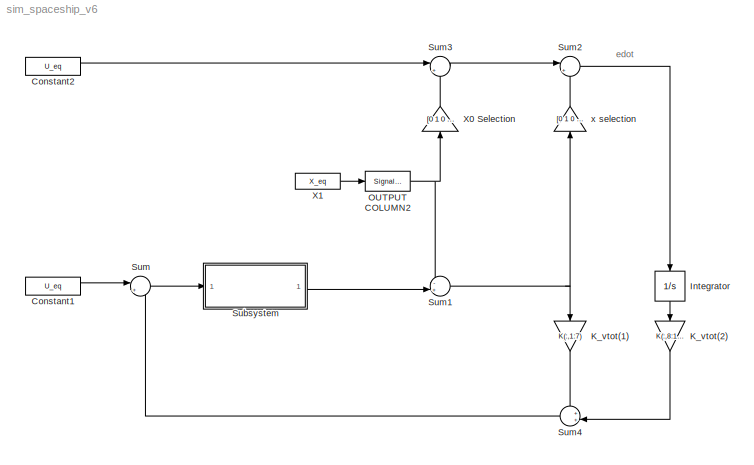
MODEL sim_spaceship_v6
KIND model
BLOCK [Constant] Constant1
  SID = 4048
  Value = U_eq
BLOCK [Constant] Constant2
  SID = 4065
  Value = U_eq
BLOCK [Integrator] Integrator
  Ports = [1, 1]
  SID = 4049
BLOCK [Gain] K_vtot(1)
  Gain = K(:,1:7)
  Multiplication = Matrix(K*u)
  OutDataTypeStr = Inherit: Inherit via internal rule
  ParamDataTypeStr = Inherit: Inherit via internal rule
  SID = 4050
  SaturateOnIntegerOverflow = off
BLOCK [Gain] K_vtot(2)
  Gain = K(:,8:10)
  Multiplication = Matrix(K*u)
  OutDataTypeStr = Inherit: Inherit via internal rule
  ParamDataTypeStr = Inherit: Inherit via internal rule
  SID = 4051
  SaturateOnIntegerOverflow = off
BLOCK [SignalSpecification] OUTPUT COLUMN2
  Dimensions = [7 1]
  SID = 4052
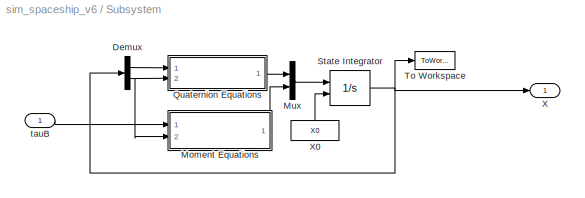
BLOCK [SubSystem] Subsystem
  FunctionWithSeparateData = off
  MaskHideContents = off
  MinAlgLoopOccurrences = off
  Opaque = off
  Ports = [1, 1]
  PropExecContextOutsideSubsystem = off
  RTWSystemCode = Auto
  RequestExecContextInheritance = off
  SID = 4062
BLOCK [Demux] Subsystem/Demux
  DisplayOption = bar
  Outputs = 2
  Ports = [1, 2]
  SID = 3949
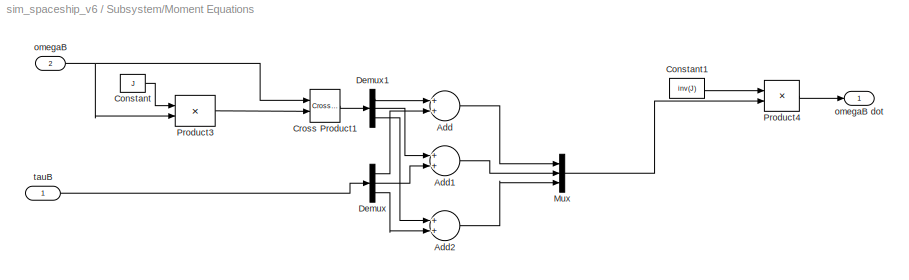
BLOCK [SubSystem] Subsystem/Moment Equations
  FunctionWithSeparateData = off
  MaskHideContents = off
  MinAlgLoopOccurrences = off
  Opaque = off
  Ports = [2, 1]
  PropExecContextOutsideSubsystem = off
  RTWSystemCode = Auto
  RequestExecContextInheritance = off
  SID = 3928
BLOCK [Sum] Subsystem/Moment Equations/Add
  InputSameDT = off
  OutDataTypeStr = Inherit: Inherit via internal rule
  Ports = [2, 1]
  SID = 3948
  SaturateOnIntegerOverflow = off
BLOCK [Sum] Subsystem/Moment Equations/Add1
  InputSameDT = off
  OutDataTypeStr = Inherit: Inherit via internal rule
  Ports = [2, 1]
  SID = 3973
  SaturateOnIntegerOverflow = off
BLOCK [Sum] Subsystem/Moment Equations/Add2
  InputSameDT = off
  OutDataTypeStr = Inherit: Inherit via internal rule
  Ports = [2, 1]
  SID = 3974
  SaturateOnIntegerOverflow = off
BLOCK [Constant] Subsystem/Moment Equations/Constant
  SID = 3939
  Value = J
BLOCK [Constant] Subsystem/Moment Equations/Constant1
  SID = 3940
  Value = inv(J)
BLOCK [Reference] Subsystem/Moment Equations/Cross Product1  REF=vrlib/Utilities/Cross Product
  Ports = [2, 1]
  SID = 3933
  SourceBlock = vrlib/Utilities/Cross Product
  SourceType = Cross Product
BLOCK [Demux] Subsystem/Moment Equations/Demux
  DisplayOption = bar
  Outputs = 3
  Ports = [1, 3]
  SID = 3970
BLOCK [Demux] Subsystem/Moment Equations/Demux1
  DisplayOption = bar
  Outputs = 3
  Ports = [1, 3]
  SID = 3971
BLOCK [Mux] Subsystem/Moment Equations/Mux
  DisplayOption = bar
  Inputs = 3
  Ports = [3, 1]
  SID = 3972
BLOCK [Product] Subsystem/Moment Equations/Product3
  InputSameDT = off
  Multiplication = Matrix(*)
  OutDataTypeStr = Inherit: Inherit via internal rule
  Ports = [2, 1]
  SID = 3934
  SaturateOnIntegerOverflow = off
BLOCK [Product] Subsystem/Moment Equations/Product4
  InputSameDT = off
  Multiplication = Matrix(*)
  OutDataTypeStr = Inherit: Inherit via internal rule
  Ports = [2, 1]
  SID = 3935
  SaturateOnIntegerOverflow = off
BLOCK [Inport] Subsystem/Moment Equations/omegaB
  IconDisplay = Port number
  Port = 2
  SID = 3932
BLOCK [Outport] Subsystem/Moment Equations/omegaB dot
  IconDisplay = Port number
  SID = 3937
BLOCK [Inport] Subsystem/Moment Equations/tauB
  IconDisplay = Port number
  OutDataTypeStr = double
  SID = 3943
BLOCK [Mux] Subsystem/Mux
  DisplayOption = bar
  Inputs = 2
  Ports = [2, 1]
  SID = 3950
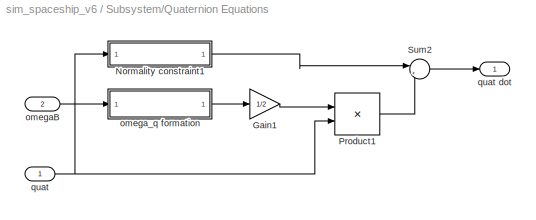
BLOCK [SubSystem] Subsystem/Quaternion Equations
  FunctionWithSeparateData = off
  MaskHideContents = off
  MinAlgLoopOccurrences = off
  Opaque = off
  Ports = [2, 1]
  PropExecContextOutsideSubsystem = off
  RTWSystemCode = Auto
  RequestExecContextInheritance = off
  SID = 3951
BLOCK [Gain] Subsystem/Quaternion Equations/Gain1
  Gain = 1/2
  OutDataTypeStr = Inherit: Inherit via internal rule
  ParamDataTypeStr = Inherit: Inherit via internal rule
  SID = 4015
  SaturateOnIntegerOverflow = off
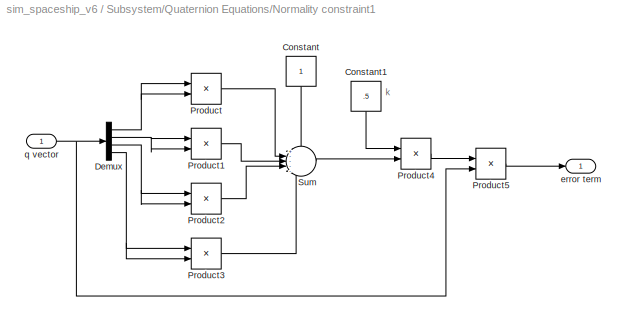
BLOCK [SubSystem] Subsystem/Quaternion Equations/Normality constraint1
  FunctionWithSeparateData = off
  MaskHideContents = off
  MinAlgLoopOccurrences = off
  Opaque = off
  Ports = [1, 1]
  PropExecContextOutsideSubsystem = off
  RTWSystemCode = Auto
  RequestExecContextInheritance = off
  SID = 4016
BLOCK [Constant] Subsystem/Quaternion Equations/Normality constraint1/Constant
  SID = 4018
BLOCK [Constant] Subsystem/Quaternion Equations/Normality constraint1/Constant1
  SID = 4019
  Value = .5
BLOCK [Demux] Subsystem/Quaternion Equations/Normality constraint1/Demux
  DisplayOption = bar
  Ports = [1, 4]
  SID = 4020
BLOCK [Product] Subsystem/Quaternion Equations/Normality constraint1/Product
  InputSameDT = off
  OutDataTypeStr = Inherit: Inherit via internal rule
  Ports = [2, 1]
  SID = 4021
  SaturateOnIntegerOverflow = off
BLOCK [Product] Subsystem/Quaternion Equations/Normality constraint1/Product1
  InputSameDT = off
  OutDataTypeStr = Inherit: Inherit via internal rule
  Ports = [2, 1]
  SID = 4022
  SaturateOnIntegerOverflow = off
BLOCK [Product] Subsystem/Quaternion Equations/Normality constraint1/Product2
  InputSameDT = off
  OutDataTypeStr = Inherit: Inherit via internal rule
  Ports = [2, 1]
  SID = 4023
  SaturateOnIntegerOverflow = off
BLOCK [Product] Subsystem/Quaternion Equations/Normality constraint1/Product3
  InputSameDT = off
  OutDataTypeStr = Inherit: Inherit via internal rule
  Ports = [2, 1]
  SID = 4024
  SaturateOnIntegerOverflow = off
BLOCK [Product] Subsystem/Quaternion Equations/Normality constraint1/Product4
  InputSameDT = off
  OutDataTypeStr = Inherit: Inherit via internal rule
  Ports = [2, 1]
  SID = 4025
  SaturateOnIntegerOverflow = off
BLOCK [Product] Subsystem/Quaternion Equations/Normality constraint1/Product5
  InputSameDT = off
  OutDataTypeStr = Inherit: Inherit via internal rule
  Ports = [2, 1]
  SID = 4026
  SaturateOnIntegerOverflow = off
BLOCK [Sum] Subsystem/Quaternion Equations/Normality constraint1/Sum
  IconShape = round
  InputSameDT = off
  Inputs = +----
  OutDataTypeStr = Inherit: Inherit via internal rule
  Ports = [5, 1]
  SID = 4027
  SaturateOnIntegerOverflow = off
BLOCK [Outport] Subsystem/Quaternion Equations/Normality constraint1/error term
  IconDisplay = Port number
  SID = 4028
BLOCK [Inport] Subsystem/Quaternion Equations/Normality constraint1/q vector
  IconDisplay = Port number
  SID = 4017
BLOCK [Product] Subsystem/Quaternion Equations/Product1
  InputSameDT = off
  Multiplication = Matrix(*)
  OutDataTypeStr = Inherit: Inherit via internal rule
  Ports = [2, 1]
  SID = 4029
  SaturateOnIntegerOverflow = off
BLOCK [Sum] Subsystem/Quaternion Equations/Sum2
  IconShape = round
  InputSameDT = off
  Inputs = |++
  OutDataTypeStr = Inherit: Inherit via internal rule
  Ports = [2, 1]
  SID = 4030
  SaturateOnIntegerOverflow = off
BLOCK [Inport] Subsystem/Quaternion Equations/omegaB
  IconDisplay = Port number
  Port = 2
  SID = 4014
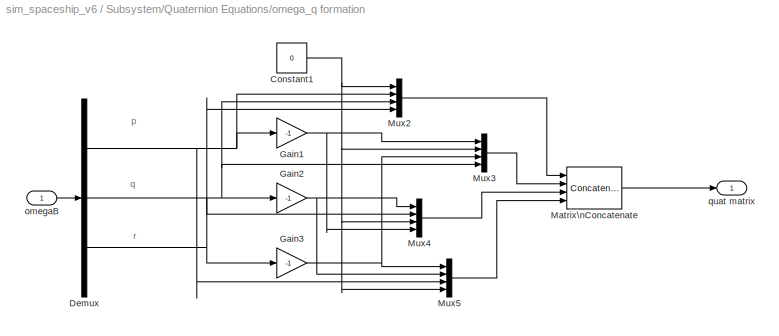
BLOCK [SubSystem] Subsystem/Quaternion Equations/omega_q formation
  FunctionWithSeparateData = off
  MaskHideContents = off
  MinAlgLoopOccurrences = off
  Opaque = off
  Ports = [1, 1]
  PropExecContextOutsideSubsystem = off
  RTWSystemCode = Auto
  RequestExecContextInheritance = off
  SID = 4031
BLOCK [Constant] Subsystem/Quaternion Equations/omega_q formation/Constant1
  SID = 4033
  Value = 0
BLOCK [Demux] Subsystem/Quaternion Equations/omega_q formation/Demux
  DisplayOption = bar
  Outputs = 3
  Ports = [1, 3]
  SID = 4034
BLOCK [Gain] Subsystem/Quaternion Equations/omega_q formation/Gain1
  Gain = -1
  OutDataTypeStr = Inherit: Inherit via internal rule
  ParamDataTypeStr = Inherit: Inherit via internal rule
  SID = 4035
  SaturateOnIntegerOverflow = off
BLOCK [Gain] Subsystem/Quaternion Equations/omega_q formation/Gain2
  Gain = -1
  OutDataTypeStr = Inherit: Inherit via internal rule
  ParamDataTypeStr = Inherit: Inherit via internal rule
  SID = 4036
  SaturateOnIntegerOverflow = off
BLOCK [Gain] Subsystem/Quaternion Equations/omega_q formation/Gain3
  Gain = -1
  OutDataTypeStr = Inherit: Inherit via internal rule
  ParamDataTypeStr = Inherit: Inherit via internal rule
  SID = 4037
  SaturateOnIntegerOverflow = off
BLOCK [Concatenate] Subsystem/Quaternion Equations/omega_q formation/Matrix\nConcatenate
  ConcatenateDimension = 2
  Mode = Multidimensional array
  NumInputs = 4
  Ports = [4, 1]
  SID = 4038
BLOCK [Mux] Subsystem/Quaternion Equations/omega_q formation/Mux2
  DisplayOption = bar
  Ports = [4, 1]
  SID = 4039
BLOCK [Mux] Subsystem/Quaternion Equations/omega_q formation/Mux3
  DisplayOption = bar
  Ports = [4, 1]
  SID = 4040
BLOCK [Mux] Subsystem/Quaternion Equations/omega_q formation/Mux4
  DisplayOption = bar
  Ports = [4, 1]
  SID = 4041
BLOCK [Mux] Subsystem/Quaternion Equations/omega_q formation/Mux5
  DisplayOption = bar
  Ports = [4, 1]
  SID = 4042
BLOCK [Inport] Subsystem/Quaternion Equations/omega_q formation/omegaB
  IconDisplay = Port number
  SID = 4032
BLOCK [Outport] Subsystem/Quaternion Equations/omega_q formation/quat matrix
  IconDisplay = Port number
  SID = 4043
BLOCK [Inport] Subsystem/Quaternion Equations/quat
  IconDisplay = Port number
  SID = 4013
BLOCK [Outport] Subsystem/Quaternion Equations/quat dot
  IconDisplay = Port number
  SID = 4044
BLOCK [Integrator] Subsystem/State Integrator
  InitialConditionSource = external
  Ports = [2, 1]
  SID = 2650
BLOCK [ToWorkspace] Subsystem/To Workspace
  MaxDataPoints = inf
  Ports = [1]
  SID = 4045
  SampleTime = -1
  SaveFormat = Structure
  VariableName = X_out
BLOCK [Outport] Subsystem/X
  IconDisplay = Port number
  SID = 4064
BLOCK [Constant] Subsystem/X0
  SID = 3053
  Value = X0
BLOCK [Inport] Subsystem/tauB
  IconDisplay = Port number
  SID = 4063
BLOCK [Sum] Sum
  IconShape = round
  InputSameDT = off
  Inputs = |+-
  OutDataTypeStr = Inherit: Inherit via internal rule
  Ports = [2, 1]
  SID = 4053
  SaturateOnIntegerOverflow = off
BLOCK [Sum] Sum1
  IconShape = round
  InputSameDT = off
  Inputs = -+|
  OutDataTypeStr = Inherit: Inherit via internal rule
  Ports = [2, 1]
  SID = 4054
  SaturateOnIntegerOverflow = off
BLOCK [Sum] Sum2
  IconShape = round
  InputSameDT = off
  Inputs = |+-
  OutDataTypeStr = Inherit: Inherit via internal rule
  Ports = [2, 1]
  SID = 4055
  SaturateOnIntegerOverflow = off
BLOCK [Sum] Sum3
  IconShape = round
  InputSameDT = off
  Inputs = |+-
  OutDataTypeStr = Inherit: Inherit via internal rule
  Ports = [2, 1]
  SID = 4056
  SaturateOnIntegerOverflow = off
BLOCK [Sum] Sum4
  IconShape = round
  InputSameDT = off
  Inputs = ++|
  OutDataTypeStr = Inherit: Inherit via internal rule
  Ports = [2, 1]
  SID = 4057
  SaturateOnIntegerOverflow = off
BLOCK [Gain] X0 Selection
  Gain = [0 1 0 0 0 0 0; 0 0 1 0 0 0 0; 0 0 0 1 0 0 0]
  Multiplication = Matrix(K*u)
  OutDataTypeStr = Inherit: Inherit via internal rule
  ParamDataTypeStr = Inherit: Inherit via internal rule
  SID = 4059
  SaturateOnIntegerOverflow = off
BLOCK [Constant] X1
  SID = 4058
  Value = X_eq
BLOCK [Gain] x selection 
  Gain = [0 1 0 0 0 0 0; 0 0 1 0 0 0 0; 0 0 0 1 0 0 0]
  Multiplication = Matrix(K*u)
  OutDataTypeStr = Inherit: Inherit via internal rule
  ParamDataTypeStr = Inherit: Inherit via internal rule
  SID = 4060
  SaturateOnIntegerOverflow = off
ANNOTATION (root): edot
ANNOTATION Subsystem/Quaternion Equations/Normality constraint1: k
ANNOTATION Subsystem/Quaternion Equations/omega_q formation: p
ANNOTATION Subsystem/Quaternion Equations/omega_q formation: q
ANNOTATION Subsystem/Quaternion Equations/omega_q formation: r
LINE Constant1:1 -> Sum:1
LINE Constant2:1 -> Sum3:1
LINE Integrator:1 -> K_vtot(2):1
LINE K_vtot(1):1 -> Sum4:1
LINE K_vtot(2):1 -> Sum4:2
NET OUTPUT COLUMN2:1 -> Sum1:1, X0 Selection:1
LINE Subsystem/Demux:1 -> Subsystem/Quaternion Equations:1
NET Subsystem/Demux:2 -> Subsystem/Moment Equations:2, Subsystem/Quaternion Equations:2
LINE Subsystem/Moment Equations/Add1:1 -> Subsystem/Moment Equations/Mux:2
LINE Subsystem/Moment Equations/Add2:1 -> Subsystem/Moment Equations/Mux:3
LINE Subsystem/Moment Equations/Add:1 -> Subsystem/Moment Equations/Mux:1
LINE Subsystem/Moment Equations/Constant1:1 -> Subsystem/Moment Equations/Product4:1
LINE Subsystem/Moment Equations/Constant:1 -> Subsystem/Moment Equations/Product3:1
LINE Subsystem/Moment Equations/Cross Product1:1 -> Subsystem/Moment Equations/Demux1:1
LINE Subsystem/Moment Equations/Demux1:1 -> Subsystem/Moment Equations/Add:1
LINE Subsystem/Moment Equations/Demux1:2 -> Subsystem/Moment Equations/Add1:1
LINE Subsystem/Moment Equations/Demux1:3 -> Subsystem/Moment Equations/Add2:1
LINE Subsystem/Moment Equations/Demux:1 -> Subsystem/Moment Equations/Add:2
LINE Subsystem/Moment Equations/Demux:2 -> Subsystem/Moment Equations/Add1:2
LINE Subsystem/Moment Equations/Demux:3 -> Subsystem/Moment Equations/Add2:2
LINE Subsystem/Moment Equations/Mux:1 -> Subsystem/Moment Equations/Product4:2
LINE Subsystem/Moment Equations/Product3:1 -> Subsystem/Moment Equations/Cross Product1:2
LINE Subsystem/Moment Equations/Product4:1 -> Subsystem/Moment Equations/omegaB dot:1
NET Subsystem/Moment Equations/omegaB:1 -> Subsystem/Moment Equations/Cross Product1:1, Subsystem/Moment Equations/Product3:2
LINE Subsystem/Moment Equations/tauB:1 -> Subsystem/Moment Equations/Demux:1
LINE Subsystem/Moment Equations:1 -> Subsystem/Mux:2
LINE Subsystem/Mux:1 -> Subsystem/State Integrator:1
LINE Subsystem/Quaternion Equations/Gain1:1 -> Subsystem/Quaternion Equations/Product1:1
LINE Subsystem/Quaternion Equations/Normality constraint1/Constant1:1 -> Subsystem/Quaternion Equations/Normality constraint1/Product4:1
LINE Subsystem/Quaternion Equations/Normality constraint1/Constant:1 -> Subsystem/Quaternion Equations/Normality constraint1/Sum:1
NET Subsystem/Quaternion Equations/Normality constraint1/Demux:1 -> Subsystem/Quaternion Equations/Normality constraint1/Product:1, Subsystem/Quaternion Equations/Normality constraint1/Product:2
NET Subsystem/Quaternion Equations/Normality constraint1/Demux:2 -> Subsystem/Quaternion Equations/Normality constraint1/Product1:1, Subsystem/Quaternion Equations/Normality constraint1/Product1:2
NET Subsystem/Quaternion Equations/Normality constraint1/Demux:3 -> Subsystem/Quaternion Equations/Normality constraint1/Product2:1, Subsystem/Quaternion Equations/Normality constraint1/Product2:2
NET Subsystem/Quaternion Equations/Normality constraint1/Demux:4 -> Subsystem/Quaternion Equations/Normality constraint1/Product3:1, Subsystem/Quaternion Equations/Normality constraint1/Product3:2
LINE Subsystem/Quaternion Equations/Normality constraint1/Product1:1 -> Subsystem/Quaternion Equations/Normality constraint1/Sum:3
LINE Subsystem/Quaternion Equations/Normality constraint1/Product2:1 -> Subsystem/Quaternion Equations/Normality constraint1/Sum:4
LINE Subsystem/Quaternion Equations/Normality constraint1/Product3:1 -> Subsystem/Quaternion Equations/Normality constraint1/Sum:5
LINE Subsystem/Quaternion Equations/Normality constraint1/Product4:1 -> Subsystem/Quaternion Equations/Normality constraint1/Product5:1
LINE Subsystem/Quaternion Equations/Normality constraint1/Product5:1 -> Subsystem/Quaternion Equations/Normality constraint1/error term:1
LINE Subsystem/Quaternion Equations/Normality constraint1/Product:1 -> Subsystem/Quaternion Equations/Normality constraint1/Sum:2
LINE Subsystem/Quaternion Equations/Normality constraint1/Sum:1 -> Subsystem/Quaternion Equations/Normality constraint1/Product4:2
NET Subsystem/Quaternion Equations/Normality constraint1/q vector:1 -> Subsystem/Quaternion Equations/Normality constraint1/Demux:1, Subsystem/Quaternion Equations/Normality constraint1/Product5:2
LINE Subsystem/Quaternion Equations/Normality constraint1:1 -> Subsystem/Quaternion Equations/Sum2:1
LINE Subsystem/Quaternion Equations/Product1:1 -> Subsystem/Quaternion Equations/Sum2:2
LINE Subsystem/Quaternion Equations/Sum2:1 -> Subsystem/Quaternion Equations/quat dot:1
LINE Subsystem/Quaternion Equations/omegaB:1 -> Subsystem/Quaternion Equations/omega_q formation:1
NET Subsystem/Quaternion Equations/omega_q formation/Constant1:1 -> Subsystem/Quaternion Equations/omega_q formation/Mux2:1, Subsystem/Quaternion Equations/omega_q formation/Mux3:2, Subsystem/Quaternion Equations/omega_q formation/Mux4:3, Subsystem/Quaternion Equations/omega_q formation/Mux5:4
NET Subsystem/Quaternion Equations/omega_q formation/Demux:1 -> Subsystem/Quaternion Equations/omega_q formation/Gain1:1, Subsystem/Quaternion Equations/omega_q formation/Mux2:2, Subsystem/Quaternion Equations/omega_q formation/Mux5:3
NET Subsystem/Quaternion Equations/omega_q formation/Demux:2 -> Subsystem/Quaternion Equations/omega_q formation/Gain2:1, Subsystem/Quaternion Equations/omega_q formation/Mux2:3, Subsystem/Quaternion Equations/omega_q formation/Mux3:4
NET Subsystem/Quaternion Equations/omega_q formation/Demux:3 -> Subsystem/Quaternion Equations/omega_q formation/Gain3:1, Subsystem/Quaternion Equations/omega_q formation/Mux2:4, Subsystem/Quaternion Equations/omega_q formation/Mux4:2
NET Subsystem/Quaternion Equations/omega_q formation/Gain1:1 -> Subsystem/Quaternion Equations/omega_q formation/Mux3:1, Subsystem/Quaternion Equations/omega_q formation/Mux4:4
NET Subsystem/Quaternion Equations/omega_q formation/Gain2:1 -> Subsystem/Quaternion Equations/omega_q formation/Mux4:1, Subsystem/Quaternion Equations/omega_q formation/Mux5:2
NET Subsystem/Quaternion Equations/omega_q formation/Gain3:1 -> Subsystem/Quaternion Equations/omega_q formation/Mux3:3, Subsystem/Quaternion Equations/omega_q formation/Mux5:1
LINE Subsystem/Quaternion Equations/omega_q formation/Matrix\nConcatenate:1 -> Subsystem/Quaternion Equations/omega_q formation/quat matrix:1
LINE Subsystem/Quaternion Equations/omega_q formation/Mux2:1 -> Subsystem/Quaternion Equations/omega_q formation/Matrix\nConcatenate:1
LINE Subsystem/Quaternion Equations/omega_q formation/Mux3:1 -> Subsystem/Quaternion Equations/omega_q formation/Matrix\nConcatenate:2
LINE Subsystem/Quaternion Equations/omega_q formation/Mux4:1 -> Subsystem/Quaternion Equations/omega_q formation/Matrix\nConcatenate:3
LINE Subsystem/Quaternion Equations/omega_q formation/Mux5:1 -> Subsystem/Quaternion Equations/omega_q formation/Matrix\nConcatenate:4
LINE Subsystem/Quaternion Equations/omega_q formation/omegaB:1 -> Subsystem/Quaternion Equations/omega_q formation/Demux:1
LINE Subsystem/Quaternion Equations/omega_q formation:1 -> Subsystem/Quaternion Equations/Gain1:1
NET Subsystem/Quaternion Equations/quat:1 -> Subsystem/Quaternion Equations/Normality constraint1:1, Subsystem/Quaternion Equations/Product1:2
LINE Subsystem/Quaternion Equations:1 -> Subsystem/Mux:1
NET Subsystem/State Integrator:1 -> Subsystem/Demux:1, Subsystem/To Workspace:1, Subsystem/X:1
LINE Subsystem/X0:1 -> Subsystem/State Integrator:2
LINE Subsystem/tauB:1 -> Subsystem/Moment Equations:1
LINE Subsystem:1 -> Sum1:2
NET Sum1:1 -> K_vtot(1):1, x selection :1
LINE Sum2:1 -> Integrator:1
LINE Sum3:1 -> Sum2:1
LINE Sum4:1 -> Sum:2
LINE Sum:1 -> Subsystem:1
LINE X0 Selection:1 -> Sum3:2
LINE X1:1 -> OUTPUT COLUMN2:1
LINE x selection :1 -> Sum2:2
note: NET lines group one-source signal fan-out (src -> all destinations, sorted); 1:1 wires keep LINE
